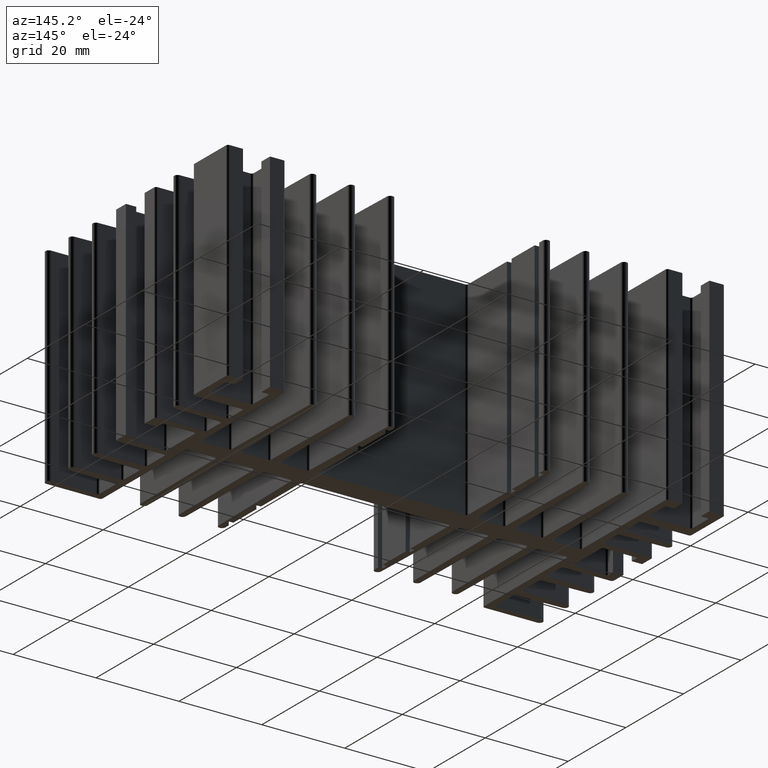
[diagram: clean part render]
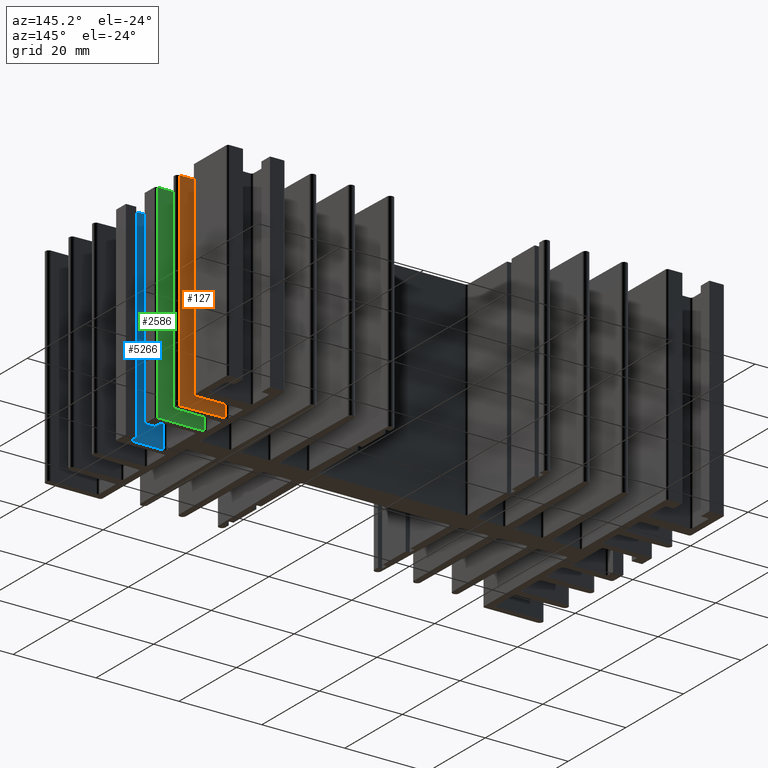
[diagram: same view with three faces highlighted in distinct colors, each labeled with its STEP entity id]
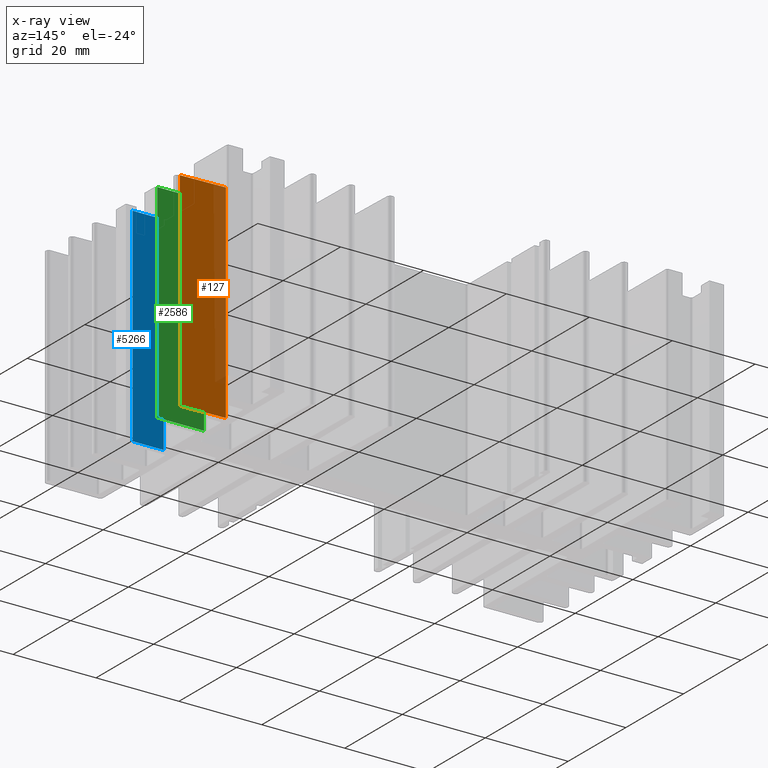
[diagram: x-ray of the same camera — body ghosted, the three highlighted faces saturated]
A machine part, auxiliary view with three faces highlighted in distinct colors.
The next image is the same camera in x-ray (body ghosted, the three faces saturated) — at least one of them is partly hidden behind the body in this view.
Their STEP definitions:

[orange] entity #127 — the highlighted planar face has unit normal (-0.0263, -0.9997, 0).
#127 = ADVANCED_FACE ( 'NONE', ( #7375 ), #1596, .F. ) ;
#290 = EDGE_CURVE ( 'NONE', #2093, #1398, #7607, .T. ) ;
#471 = VECTOR ( 'NONE', #7742, 1000.000000000000000 ) ;
#960 = DIRECTION ( 'NONE',  ( -0.9996545574382348365, 0.02628242365092749167, 0.0000000000000000000 ) ) ;
#1302 = LINE ( 'NONE', #3871, #6327 ) ;
#1398 = VERTEX_POINT ( 'NONE', #6407 ) ;
#1596 = PLANE ( 'NONE',  #4508 ) ;
#1828 = CARTESIAN_POINT ( 'NONE',  ( 48.28685924979629362, 14.55911974139679899, 0.0000000000000000000 ) ) ;
#1842 = EDGE_CURVE ( 'NONE', #6916, #1398, #1302, .T. ) ;
#2093 = VERTEX_POINT ( 'NONE', #6863 ) ;
#2152 = LINE ( 'NONE', #4723, #7222 ) ;
#2261 = EDGE_CURVE ( 'NONE', #3580, #2093, #2597, .T. ) ;
#2597 = LINE ( 'NONE', #5167, #471 ) ;
#2732 = ORIENTED_EDGE ( 'NONE', *, *, #6862, .F. ) ;
#3580 = VERTEX_POINT ( 'NONE', #6905 ) ;
#3871 = CARTESIAN_POINT ( 'NONE',  ( 48.28685924979629362, 14.55911974139679899, 50.00000000000000000 ) ) ;
#4163 = CARTESIAN_POINT ( 'NONE',  ( 48.28685924979629362, 14.55911974139679899, 50.00000000000000000 ) ) ;
#4404 = DIRECTION ( 'NONE',  ( -0.9996545574382348365, 0.02628242365092749167, 0.0000000000000000000 ) ) ;
#4508 = AXIS2_PLACEMENT_3D ( 'NONE', #4163, #6729, #960 ) ;
#4723 = CARTESIAN_POINT ( 'NONE',  ( 48.28685924979629362, 14.55911974139679899, 50.00000000000000000 ) ) ;
#4815 = CARTESIAN_POINT ( 'NONE',  ( 48.28685924979629362, 14.55911974139679899, 50.00000000000000000 ) ) ;
#4892 = EDGE_LOOP ( 'NONE', ( #4917, #6108, #2732, #6199 ) ) ;
#4917 = ORIENTED_EDGE ( 'NONE', *, *, #290, .T. ) ;
#5167 = CARTESIAN_POINT ( 'NONE',  ( 59.22102647582420332, 14.27164401974250119, 50.00000000000000000 ) ) ;
#6108 = ORIENTED_EDGE ( 'NONE', *, *, #1842, .F. ) ;
#6199 = ORIENTED_EDGE ( 'NONE', *, *, #2261, .T. ) ;
#6327 = VECTOR ( 'NONE', #6434, 1000.000000000000000 ) ;
#6407 = CARTESIAN_POINT ( 'NONE',  ( 48.28685924979629362, 14.55911974139679899, 0.0000000000000000000 ) ) ;
#6434 = DIRECTION ( 'NONE',  ( 0.0000000000000000000, 0.0000000000000000000, -1.000000000000000000 ) ) ;
#6729 = DIRECTION ( 'NONE',  ( -0.02628242365092749513, -0.9996545574382349475, 0.0000000000000000000 ) ) ;
#6862 = EDGE_CURVE ( 'NONE', #3580, #6916, #2152, .T. ) ;
#6863 = CARTESIAN_POINT ( 'NONE',  ( 59.22102647582420332, 14.27164401974250119, 0.0000000000000000000 ) ) ;
#6905 = CARTESIAN_POINT ( 'NONE',  ( 59.22102647582420332, 14.27164401974250119, 50.00000000000000000 ) ) ;
#6916 = VERTEX_POINT ( 'NONE', #4815 ) ;
#7222 = VECTOR ( 'NONE', #7303, 1000.000000000000000 ) ;
#7303 = DIRECTION ( 'NONE',  ( -0.9996545574382348365, 0.02628242365092749167, 0.0000000000000000000 ) ) ;
#7360 = VECTOR ( 'NONE', #4404, 1000.000000000000000 ) ;
#7375 = FACE_OUTER_BOUND ( 'NONE', #4892, .T. ) ;
#7607 = LINE ( 'NONE', #1828, #7360 ) ;
#7742 = DIRECTION ( 'NONE',  ( 0.0000000000000000000, 0.0000000000000000000, -1.000000000000000000 ) ) ;

[blue] entity #5266 — the highlighted planar face has unit normal (0, -1, 0).
#103 = DIRECTION ( 'NONE',  ( 0.0000000000000000000, 0.0000000000000000000, -1.000000000000000000 ) ) ;
#230 = VERTEX_POINT ( 'NONE', #3017 ) ;
#247 = LINE ( 'NONE', #2821, #6938 ) ;
#642 = VERTEX_POINT ( 'NONE', #8309 ) ;
#732 = PLANE ( 'NONE',  #4126 ) ;
#1189 = EDGE_LOOP ( 'NONE', ( #7957, #3187, #6678, #2917 ) ) ;
#1198 = VERTEX_POINT ( 'NONE', #2258 ) ;
#1493 = CARTESIAN_POINT ( 'NONE',  ( 56.99999945654010247, -5.278081722954420130, 0.0000000000000000000 ) ) ;
#1653 = DIRECTION ( 'NONE',  ( -1.000000000000000000, 0.0000000000000000000, 0.0000000000000000000 ) ) ;
#1892 = EDGE_CURVE ( 'NONE', #230, #2170, #5268, .T. ) ;
#2058 = DIRECTION ( 'NONE',  ( 0.0000000000000000000, 0.0000000000000000000, -1.000000000000000000 ) ) ;
#2170 = VERTEX_POINT ( 'NONE', #4415 ) ;
#2258 = CARTESIAN_POINT ( 'NONE',  ( 49.49999945654010247, -5.278081722954420130, 0.0000000000000000000 ) ) ;
#2821 = CARTESIAN_POINT ( 'NONE',  ( 49.49999945654010247, -5.278081722954420130, 50.00000000000000000 ) ) ;
#2917 = ORIENTED_EDGE ( 'NONE', *, *, #1892, .T. ) ;
#2962 = EDGE_CURVE ( 'NONE', #2170, #1198, #7271, .T. ) ;
#3017 = CARTESIAN_POINT ( 'NONE',  ( 56.99999945654010247, -5.278081722954420130, 50.00000000000000000 ) ) ;
#3187 = ORIENTED_EDGE ( 'NONE', *, *, #4929, .F. ) ;
#3306 = CARTESIAN_POINT ( 'NONE',  ( 56.99999945654010247, -5.278081722954420130, 50.00000000000000000 ) ) ;
#4062 = DIRECTION ( 'NONE',  ( -1.000000000000000000, 0.0000000000000000000, 0.0000000000000000000 ) ) ;
#4126 = AXIS2_PLACEMENT_3D ( 'NONE', #3306, #5881, #103 ) ;
#4192 = VECTOR ( 'NONE', #2058, 1000.000000000000000 ) ;
#4415 = CARTESIAN_POINT ( 'NONE',  ( 56.99999945654010247, -5.278081722954420130, 0.0000000000000000000 ) ) ;
#4717 = EDGE_CURVE ( 'NONE', #230, #642, #4853, .T. ) ;
#4853 = LINE ( 'NONE', #7433, #8095 ) ;
#4929 = EDGE_CURVE ( 'NONE', #642, #1198, #247, .T. ) ;
#5266 = ADVANCED_FACE ( 'NONE', ( #6505 ), #732, .F. ) ;
#5268 = LINE ( 'NONE', #7835, #4192 ) ;
#5389 = DIRECTION ( 'NONE',  ( 0.0000000000000000000, 0.0000000000000000000, -1.000000000000000000 ) ) ;
#5881 = DIRECTION ( 'NONE',  ( 0.0000000000000000000, -1.000000000000000000, 0.0000000000000000000 ) ) ;
#6505 = FACE_OUTER_BOUND ( 'NONE', #1189, .T. ) ;
#6678 = ORIENTED_EDGE ( 'NONE', *, *, #4717, .F. ) ;
#6938 = VECTOR ( 'NONE', #5389, 1000.000000000000000 ) ;
#7271 = LINE ( 'NONE', #1493, #7589 ) ;
#7433 = CARTESIAN_POINT ( 'NONE',  ( 56.99999945654010247, -5.278081722954420130, 50.00000000000000000 ) ) ;
#7589 = VECTOR ( 'NONE', #4062, 1000.000000000000000 ) ;
#7835 = CARTESIAN_POINT ( 'NONE',  ( 56.99999945654010247, -5.278081722954420130, 50.00000000000000000 ) ) ;
#7957 = ORIENTED_EDGE ( 'NONE', *, *, #2962, .T. ) ;
#8095 = VECTOR ( 'NONE', #1653, 1000.000000000000000 ) ;
#8309 = CARTESIAN_POINT ( 'NONE',  ( 49.49999945654010247, -5.278081722954420130, 50.00000000000000000 ) ) ;

[green] entity #2586 — the highlighted planar face has unit normal (0, -1, 0).
#609 = EDGE_CURVE ( 'NONE', #7646, #5300, #5011, .T. ) ;
#652 = ORIENTED_EDGE ( 'NONE', *, *, #2585, .F. ) ;
#725 = CARTESIAN_POINT ( 'NONE',  ( 59.50000047582420137, 6.971920019742520402, 50.00000000000000000 ) ) ;
#873 = ORIENTED_EDGE ( 'NONE', *, *, #5122, .T. ) ;
#1138 = VECTOR ( 'NONE', #2538, 1000.000000000000000 ) ;
#1170 = CARTESIAN_POINT ( 'NONE',  ( 59.50000047582420137, 6.971920019742520402, 50.00000000000000000 ) ) ;
#1269 = ORIENTED_EDGE ( 'NONE', *, *, #7601, .F. ) ;
#1283 = CARTESIAN_POINT ( 'NONE',  ( 59.50000047582420137, 6.971920019742520402, 50.00000000000000000 ) ) ;
#1415 = AXIS2_PLACEMENT_3D ( 'NONE', #1898, #4469, #7041 ) ;
#1803 = DIRECTION ( 'NONE',  ( -1.000000000000000000, 0.0000000000000000000, 0.0000000000000000000 ) ) ;
#1898 = CARTESIAN_POINT ( 'NONE',  ( 59.50000047582420137, 6.971920019742520402, 50.00000000000000000 ) ) ;
#2080 = CARTESIAN_POINT ( 'NONE',  ( 59.50000047582420137, 6.971920019742520402, 0.0000000000000000000 ) ) ;
#2538 = DIRECTION ( 'NONE',  ( 0.0000000000000000000, 0.0000000000000000000, -1.000000000000000000 ) ) ;
#2585 = EDGE_CURVE ( 'NONE', #7204, #5300, #5740, .T. ) ;
#2586 = ADVANCED_FACE ( 'NONE', ( #5105 ), #7680, .F. ) ;
#3299 = DIRECTION ( 'NONE',  ( -1.000000000000000000, 0.0000000000000000000, 0.0000000000000000000 ) ) ;
#3735 = DIRECTION ( 'NONE',  ( 0.0000000000000000000, 0.0000000000000000000, -1.000000000000000000 ) ) ;
#3748 = VECTOR ( 'NONE', #3299, 1000.000000000000000 ) ;
#4469 = DIRECTION ( 'NONE',  ( 0.0000000000000000000, -1.000000000000000000, 0.0000000000000000000 ) ) ;
#5011 = LINE ( 'NONE', #7584, #7597 ) ;
#5105 = FACE_OUTER_BOUND ( 'NONE', #6458, .T. ) ;
#5122 = EDGE_CURVE ( 'NONE', #5203, #7646, #6935, .T. ) ;
#5203 = VERTEX_POINT ( 'NONE', #1283 ) ;
#5246 = ORIENTED_EDGE ( 'NONE', *, *, #609, .T. ) ;
#5300 = VERTEX_POINT ( 'NONE', #7243 ) ;
#5336 = VECTOR ( 'NONE', #3735, 1000.000000000000000 ) ;
#5740 = LINE ( 'NONE', #8322, #1138 ) ;
#5845 = CARTESIAN_POINT ( 'NONE',  ( 48.30000047582420564, 6.971920019742520402, 50.00000000000000000 ) ) ;
#6458 = EDGE_LOOP ( 'NONE', ( #5246, #652, #1269, #873 ) ) ;
#6498 = LINE ( 'NONE', #725, #3748 ) ;
#6935 = LINE ( 'NONE', #1170, #5336 ) ;
#7041 = DIRECTION ( 'NONE',  ( 0.0000000000000000000, 0.0000000000000000000, -1.000000000000000000 ) ) ;
#7204 = VERTEX_POINT ( 'NONE', #5845 ) ;
#7243 = CARTESIAN_POINT ( 'NONE',  ( 48.30000047582420564, 6.971920019742520402, 0.0000000000000000000 ) ) ;
#7584 = CARTESIAN_POINT ( 'NONE',  ( 59.50000047582420137, 6.971920019742520402, 0.0000000000000000000 ) ) ;
#7597 = VECTOR ( 'NONE', #1803, 1000.000000000000000 ) ;
#7601 = EDGE_CURVE ( 'NONE', #5203, #7204, #6498, .T. ) ;
#7646 = VERTEX_POINT ( 'NONE', #2080 ) ;
#7680 = PLANE ( 'NONE',  #1415 ) ;
#8322 = CARTESIAN_POINT ( 'NONE',  ( 48.30000047582420564, 6.971920019742520402, 50.00000000000000000 ) ) ;